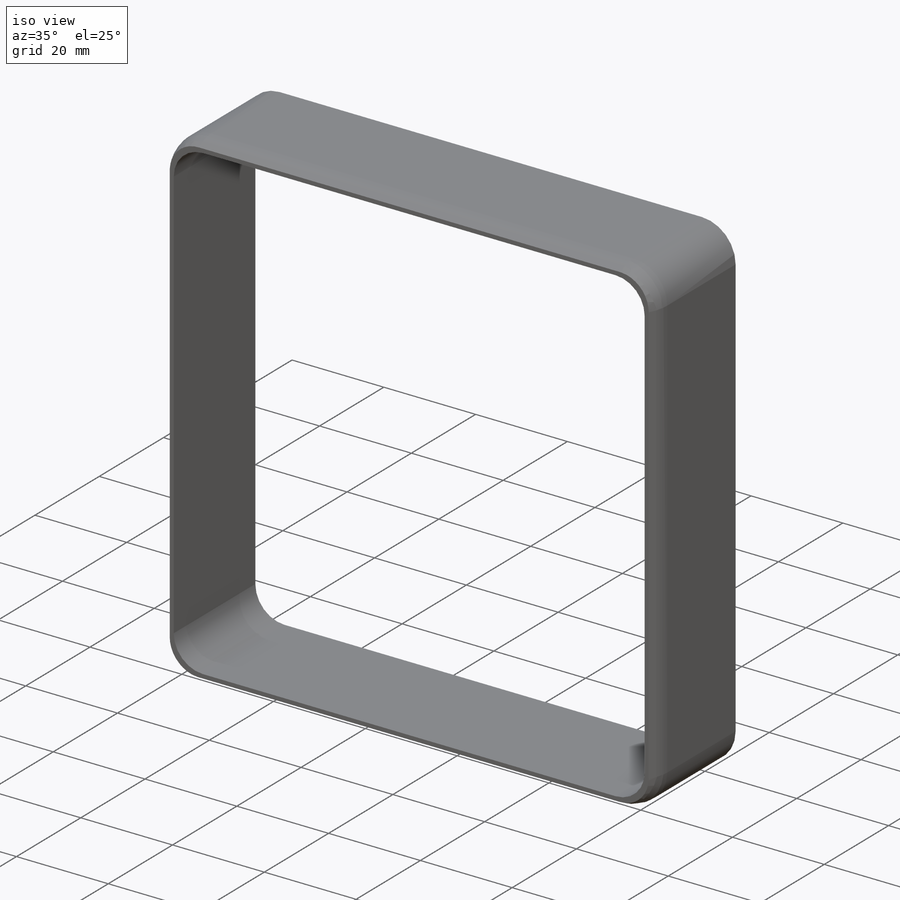
[diagram: iso view]
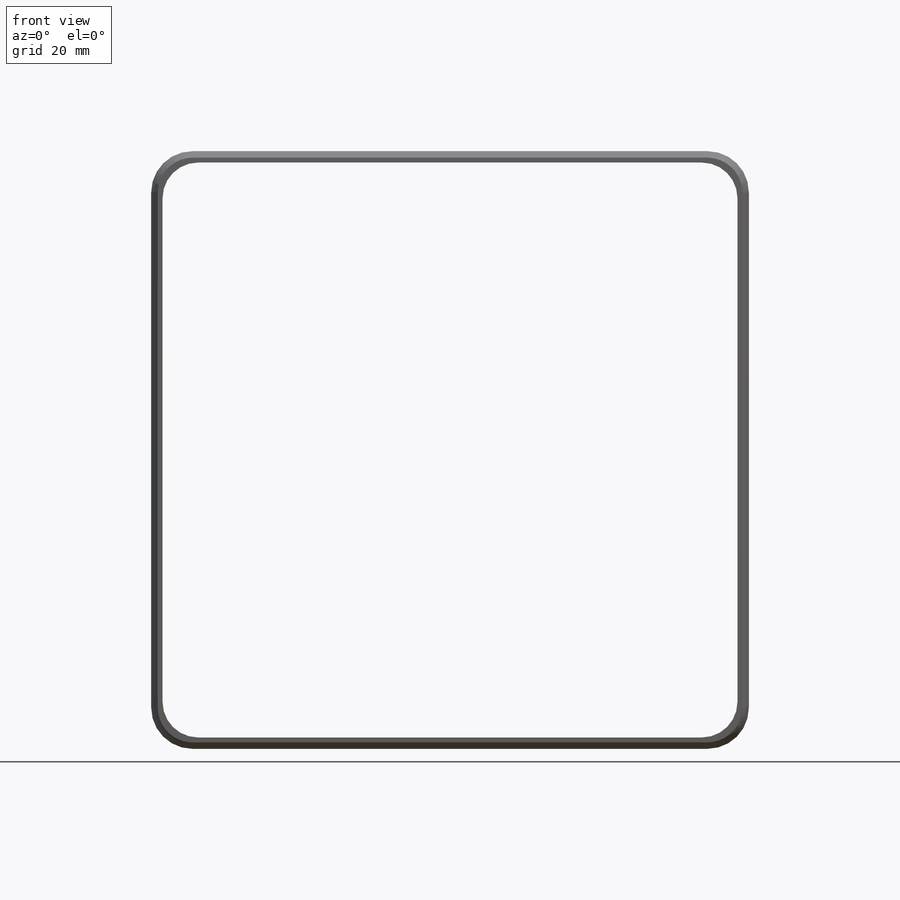
[diagram: front view]
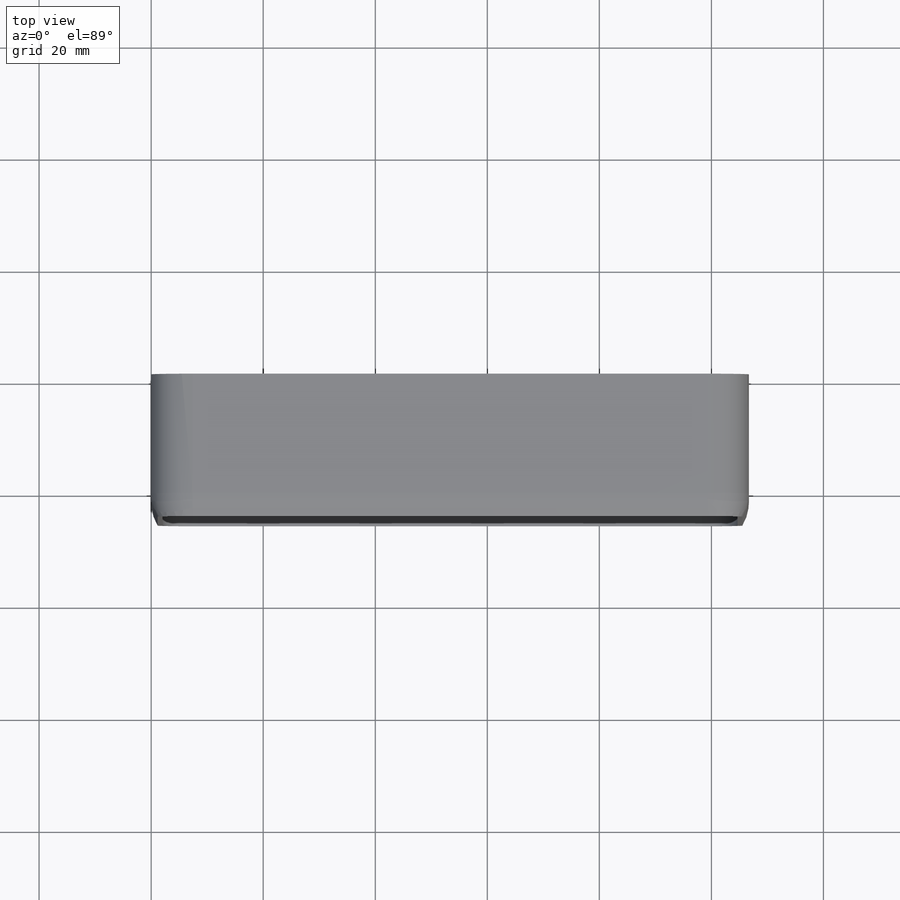
[diagram: top view]
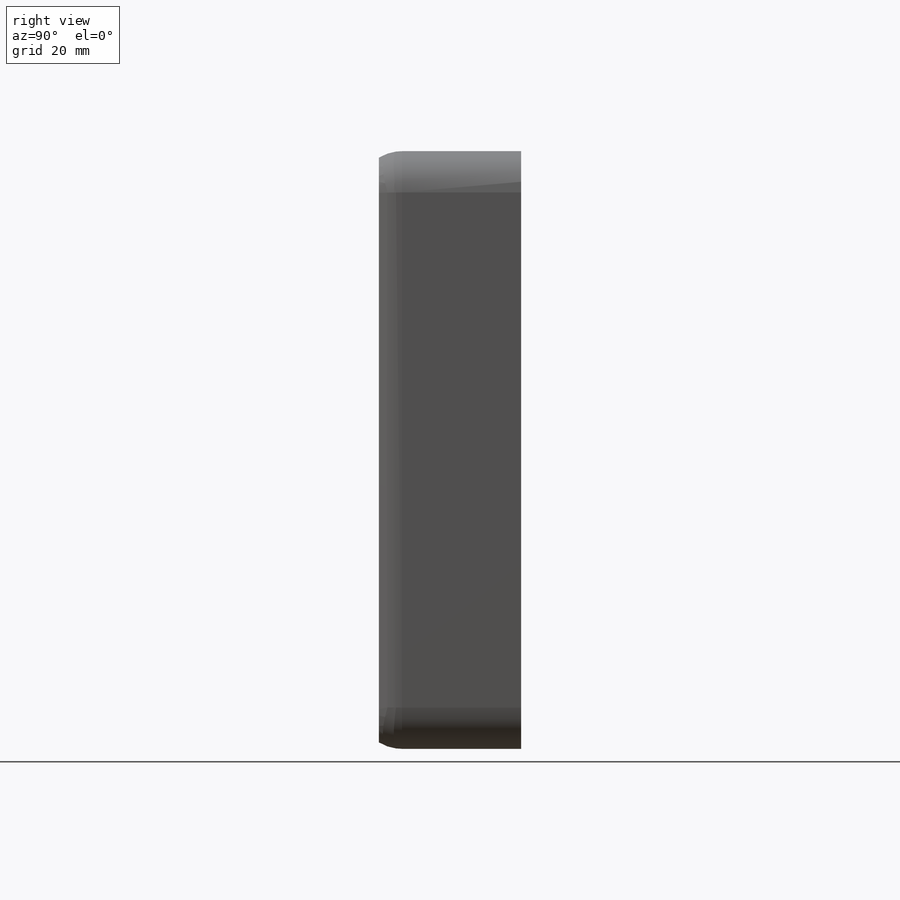
[diagram: right view]
SOLIDWORKS PART (.sldprt)
format: sldprt  version: not decoded by parser v0  size: 265,216 bytes
history: native  units: mm
features: sketch x3, fillet x3, cut_extrude x2, material x1, extrude x1 (+16 scaffold rows collapsed)
feature tree (26):
  scaffold x16  (default folders/planes/origin — collapsed)
  material  "Material <not specified>"
  sketch  "Sketch1"  dims[D1=106.68mm D2=106.68mm]
  extrude  "Extrude1"  Depth=29.21mm
  sketch  "Sketch2"  dims[D1=2.032mm]
  cut_extrude  "Extrude2"  [1 undecoded]
  fillet  "Fillet6"  Radius=7.9375mm
  fillet  "Fillet1"  Radius=6.35mm
  fillet  "Fillet2"  Radius=7.366mm
  sketch  "Sketch3"  dims[D1=25.4mm]
  cut_extrude  "Extrude3"  [1 undecoded]
decode coverage: 7 of 9 modeling features carry decoded parameters
note: 2 parameter values undecoded
note: suppression state not decoded; provenance and decode notes live in map.json
